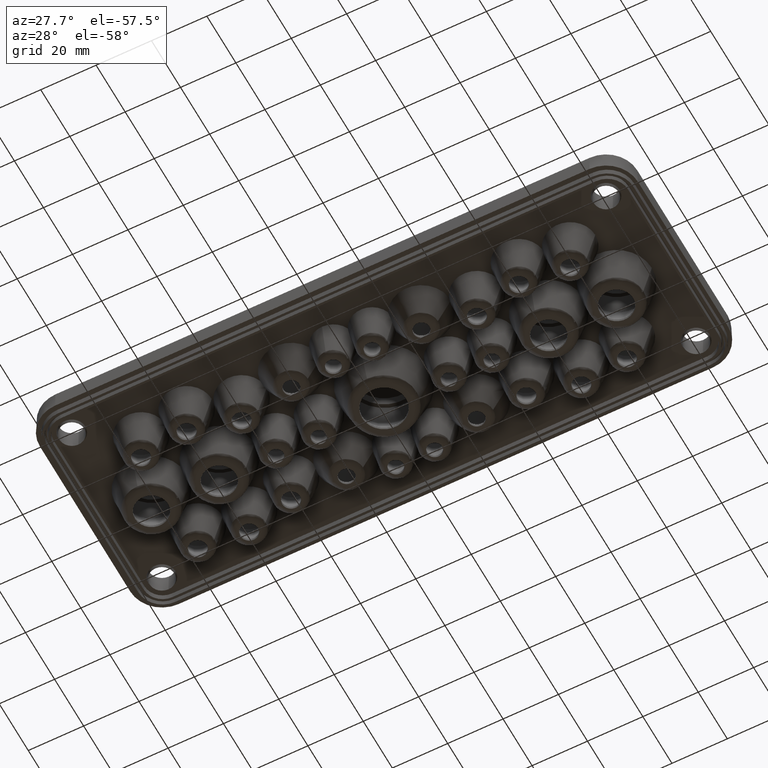
[diagram: clean part render]
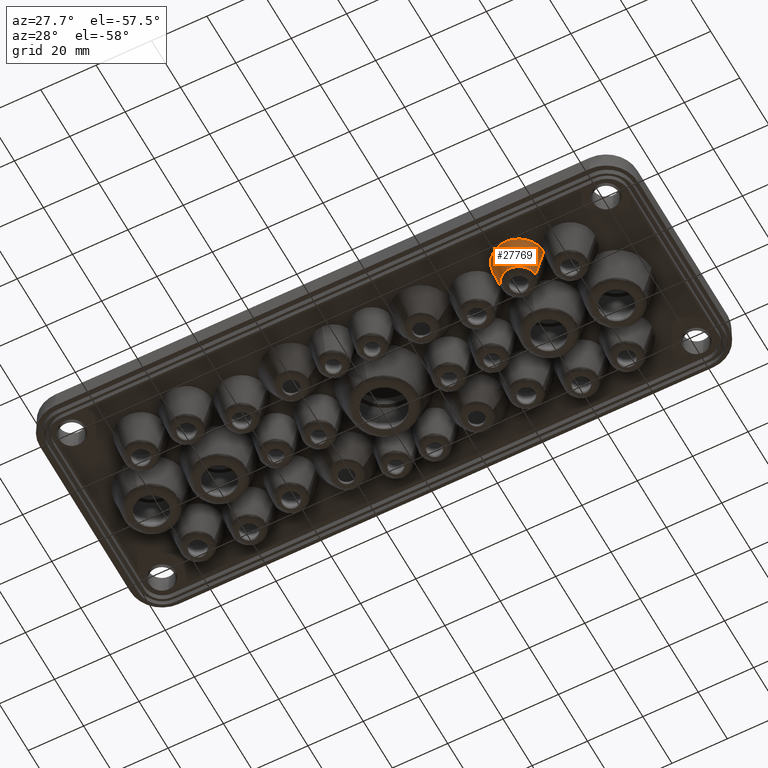
[diagram: same view with one face highlighted and labeled with its STEP entity id]
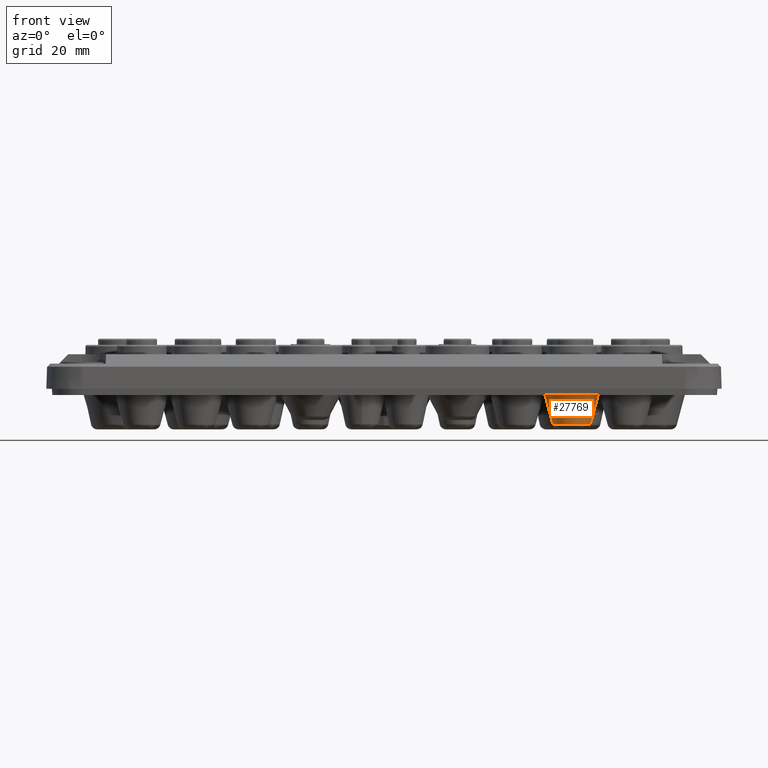
[diagram: same view with one face highlighted and labeled with its STEP entity id]
A machine part, auxiliary view. The second image highlights one B-rep face of the part: STEP entity #27769.
A second angle (front view) of the same face is appended — the face is thin or edge-on in the first view.
In plain terms, the highlighted conical surface has half-angle 15 deg.
Its self-contained STEP definition (entity closure, byte-faithful):
#1870 = CARTESIAN_POINT ( 'NONE',  ( 65.96385817501563100, -21.50000000000000000, -11.51763809020504500 ) ) ;
#2773 = DIRECTION ( 'NONE',  ( 0.0000000000000000000, -0.0000000000000000000, 1.000000000000000000 ) ) ;
#3099 = AXIS2_PLACEMENT_3D ( 'NONE', #26286, #22977, #5354 ) ;
#5354 = DIRECTION ( 'NONE',  ( 1.000000000000000000, 0.0000000000000000000, 2.908726909778106800E-016 ) ) ;
#6347 = DIRECTION ( 'NONE',  ( -0.0000000000000000000, 0.0000000000000000000, -1.000000000000000000 ) ) ;
#6970 = VECTOR ( 'NONE', #19773, 1000.000000000000100 ) ;
#7171 = VERTEX_POINT ( 'NONE', #44788 ) ;
#7371 = CARTESIAN_POINT ( 'NONE',  ( 68.90957261088610200, -21.89626034525338800, -0.5240821509473665400 ) ) ;
#9071 = EDGE_LOOP ( 'NONE', ( #27570, #12639, #18067, #40342, #41728 ) ) ;
#9976 = B_SPLINE_CURVE_WITH_KNOTS ( 'NONE', 3,
 ( #24096, #7371, #10956, #34984 ),
 .UNSPECIFIED., .F., .F.,
 ( 4, 4 ),
 ( 0.002060855573130317800, 0.003343078369695416000 ),
 .UNSPECIFIED. ) ;
#10506 = AXIS2_PLACEMENT_3D ( 'NONE', #27200, #2773, #30264 ) ;
#10956 = CARTESIAN_POINT ( 'NONE',  ( 68.94943250517401600, -22.24503442027264900, -0.2808167307759460400 ) ) ;
#12639 = ORIENTED_EDGE ( 'NONE', *, *, #35815, .T. ) ;
#13120 = CARTESIAN_POINT ( 'NONE',  ( 60.00000000000001400, -21.50000000000000000, 0.0000000000000000000 ) ) ;
#14443 = CONICAL_SURFACE ( 'NONE', #10506, 9.050000000000002500, 0.2617993877991496900 ) ;
#15944 = VERTEX_POINT ( 'NONE', #19964 ) ;
#16154 = LINE ( 'NONE', #20074, #6970 ) ;
#16194 = CARTESIAN_POINT ( 'NONE',  ( 69.05000000000001100, -21.50000000000000000, 3.020197640216865800E-015 ) ) ;
#16431 = CIRCLE ( 'NONE', #3099, 5.963858175015615400 ) ;
#18067 = ORIENTED_EDGE ( 'NONE', *, *, #35874, .T. ) ;
#19773 = DIRECTION ( 'NONE',  ( -0.2588190451025210200, 3.169619151431768000E-017, 0.9659258262890680900 ) ) ;
#19964 = CARTESIAN_POINT ( 'NONE',  ( 50.95000000000001000, -21.50000000000000000, 0.0000000000000000000 ) ) ;
#20074 = CARTESIAN_POINT ( 'NONE',  ( 50.95000000000001000, -21.50000000000000000, 3.020197640216865800E-015 ) ) ;
#22977 = DIRECTION ( 'NONE',  ( -0.0000000000000000000, -0.0000000000000000000, 1.000000000000000000 ) ) ;
#24096 = CARTESIAN_POINT ( 'NONE',  ( 68.86428571428572800, -21.50000000000000000, -0.6930951499771080800 ) ) ;
#24141 = CIRCLE ( 'NONE', #44242, 9.050000000000002500 ) ;
#26286 = CARTESIAN_POINT ( 'NONE',  ( 60.00000000000001400, -21.50000000000000000, -11.51763809020504900 ) ) ;
#27200 = CARTESIAN_POINT ( 'NONE',  ( 60.00000000000001400, -21.50000000000000000, 3.020197640216865800E-015 ) ) ;
#27570 = ORIENTED_EDGE ( 'NONE', *, *, #42028, .F. ) ;
#27769 = ADVANCED_FACE ( 'NONE', ( #29126 ), #14443, .T. ) ;
#27793 = CARTESIAN_POINT ( 'NONE',  ( 54.03614182498439800, -21.50000000000000000, -11.51763809020504900 ) ) ;
#29126 = FACE_OUTER_BOUND ( 'NONE', #9071, .T. ) ;
#29470 = EDGE_CURVE ( 'NONE', #7171, #15944, #24141, .T. ) ;
#29550 = EDGE_CURVE ( 'NONE', #31638, #7171, #9976, .T. ) ;
#30264 = DIRECTION ( 'NONE',  ( 1.000000000000000000, 0.0000000000000000000, 0.0000000000000000000 ) ) ;
#31638 = VERTEX_POINT ( 'NONE', #32358 ) ;
#32358 = CARTESIAN_POINT ( 'NONE',  ( 68.86428571428572800, -21.50000000000000000, -0.6930951499771080800 ) ) ;
#34984 = CARTESIAN_POINT ( 'NONE',  ( 68.98654782835767200, -22.56979349812955600, -1.909244973181891900E-015 ) ) ;
#35160 = VERTEX_POINT ( 'NONE', #1870 ) ;
#35815 = EDGE_CURVE ( 'NONE', #38008, #35160, #16431, .T. ) ;
#35874 = EDGE_CURVE ( 'NONE', #35160, #31638, #42394, .T. ) ;
#35883 = VECTOR ( 'NONE', #43882, 1000.000000000000100 ) ;
#38008 = VERTEX_POINT ( 'NONE', #27793 ) ;
#40342 = ORIENTED_EDGE ( 'NONE', *, *, #29550, .T. ) ;
#41728 = ORIENTED_EDGE ( 'NONE', *, *, #29470, .T. ) ;
#42028 = EDGE_CURVE ( 'NONE', #38008, #15944, #16154, .T. ) ;
#42394 = LINE ( 'NONE', #16194, #35883 ) ;
#43882 = DIRECTION ( 'NONE',  ( 0.2588190451025210200, 0.0000000000000000000, 0.9659258262890680900 ) ) ;
#44242 = AXIS2_PLACEMENT_3D ( 'NONE', #13120, #6347, #44849 ) ;
#44788 = CARTESIAN_POINT ( 'NONE',  ( 68.98654782835767200, -22.56979349812955600, -1.909244973181891900E-015 ) ) ;
#44849 = DIRECTION ( 'NONE',  ( 1.000000000000000000, 7.667286081665443600E-016, 0.0000000000000000000 ) ) ;